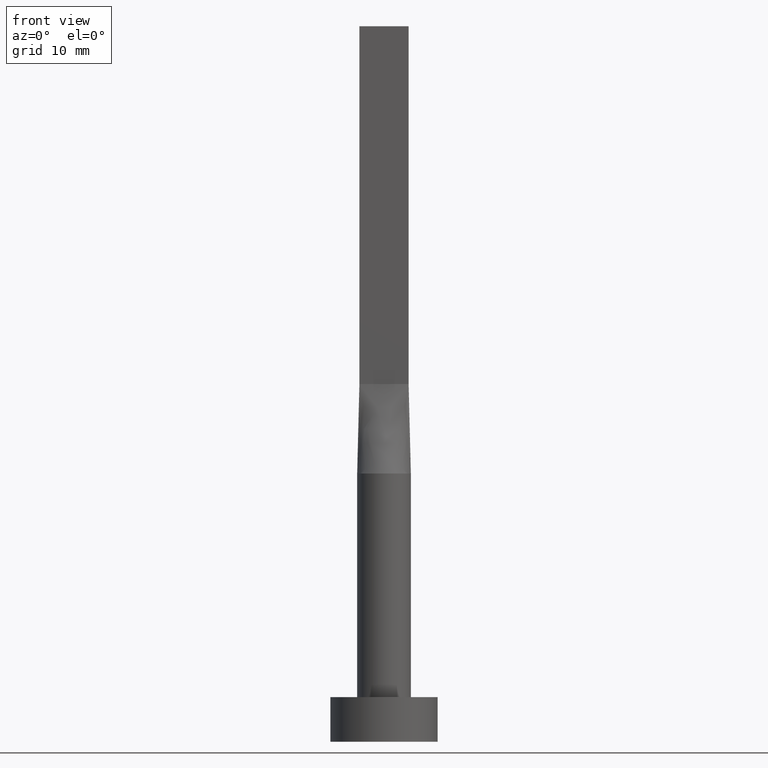
[diagram: clean part render]
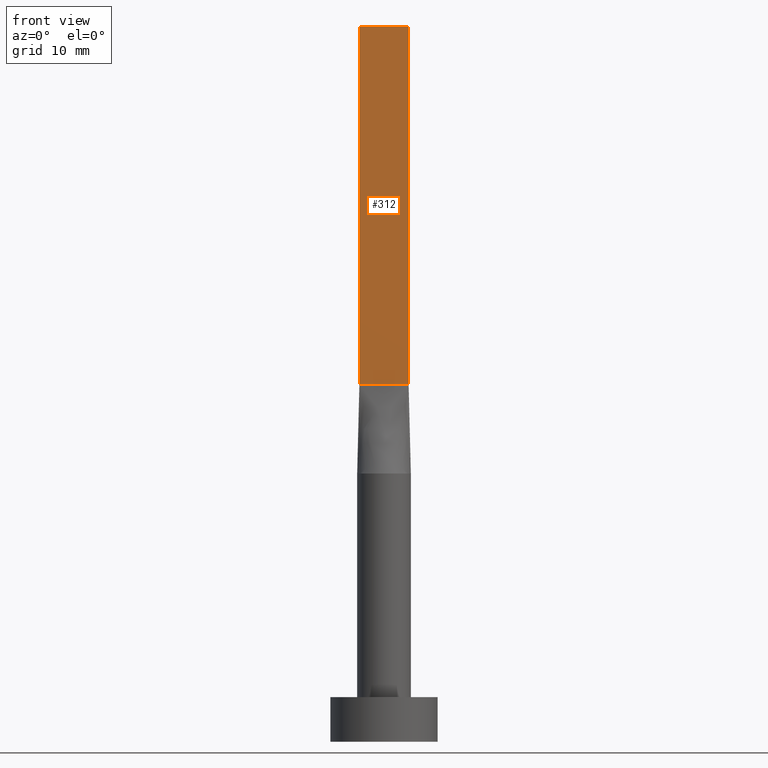
[diagram: same view with one face highlighted and labeled with its STEP entity id]
A machine part, front view. The second image highlights one B-rep face of the part: STEP entity #312.
In plain terms, the highlighted planar face has unit normal (0, 1, -0).
Its self-contained STEP definition (entity closure, byte-faithful):
#7 = FACE_OUTER_BOUND ( 'NONE', #514, .T. ) ;
#23 = LINE ( 'NONE', #381, #494 ) ;
#88 = CARTESIAN_POINT ( 'NONE',  ( -2.750000000000000000, -0.4999999999999994449, 80.00000000000000000 ) ) ;
#93 = ORIENTED_EDGE ( 'NONE', *, *, #144, .T. ) ;
#135 = ORIENTED_EDGE ( 'NONE', *, *, #284, .T. ) ;
#144 = EDGE_CURVE ( 'NONE', #578, #531, #23, .T. ) ;
#152 = CARTESIAN_POINT ( 'NONE',  ( -2.750000000000000000, -0.4999999999999994449, 80.00000000000000000 ) ) ;
#160 = CARTESIAN_POINT ( 'NONE',  ( -2.750000000000000000, -0.4999999999999994449, 40.00000000000000000 ) ) ;
#191 = DIRECTION ( 'NONE',  ( -0.000000000000000000, -0.000000000000000000, -1.000000000000000000 ) ) ;
#195 = VECTOR ( 'NONE', #191, 1000.000000000000000 ) ;
#211 = LINE ( 'NONE', #88, #353 ) ;
#213 = DIRECTION ( 'NONE',  ( 1.000000000000000000, -5.913830031739115543E-17, 0.000000000000000000 ) ) ;
#218 = CARTESIAN_POINT ( 'NONE',  ( 2.750000000000000000, -0.4999999999999997780, 40.00000000000000000 ) ) ;
#272 = PLANE ( 'NONE',  #302 ) ;
#284 = EDGE_CURVE ( 'NONE', #481, #578, #367, .T. ) ;
#290 = DIRECTION ( 'NONE',  ( 1.000000000000000000, -5.913830031739115543E-17, 0.000000000000000000 ) ) ;
#302 = AXIS2_PLACEMENT_3D ( 'NONE', #331, #549, #502 ) ;
#312 = ADVANCED_FACE ( 'NONE', ( #7 ), #272, .F. ) ;
#331 = CARTESIAN_POINT ( 'NONE',  ( -2.750000000000000000, -0.4999999999999994449, 80.00000000000000000 ) ) ;
#353 = VECTOR ( 'NONE', #213, 1000.000000000000000 ) ;
#360 = CARTESIAN_POINT ( 'NONE',  ( 2.750000000000000000, -0.4999999999999997780, 80.00000000000000000 ) ) ;
#367 = LINE ( 'NONE', #152, #195 ) ;
#372 = CARTESIAN_POINT ( 'NONE',  ( -2.750000000000000000, -0.4999999999999994449, 80.00000000000000000 ) ) ;
#381 = CARTESIAN_POINT ( 'NONE',  ( -2.750000000000000000, -0.4999999999999994449, 40.00000000000000000 ) ) ;
#391 = ORIENTED_EDGE ( 'NONE', *, *, #430, .F. ) ;
#394 = VECTOR ( 'NONE', #526, 1000.000000000000000 ) ;
#395 = ORIENTED_EDGE ( 'NONE', *, *, #555, .F. ) ;
#430 = EDGE_CURVE ( 'NONE', #481, #550, #211, .T. ) ;
#438 = CARTESIAN_POINT ( 'NONE',  ( 2.750000000000000000, -0.4999999999999997780, 80.00000000000000000 ) ) ;
#481 = VERTEX_POINT ( 'NONE', #372 ) ;
#494 = VECTOR ( 'NONE', #290, 1000.000000000000000 ) ;
#502 = DIRECTION ( 'NONE',  ( -1.000000000000000000, 5.913830031739115543E-17, 0.000000000000000000 ) ) ;
#514 = EDGE_LOOP ( 'NONE', ( #93, #395, #391, #135 ) ) ;
#526 = DIRECTION ( 'NONE',  ( -0.000000000000000000, -0.000000000000000000, -1.000000000000000000 ) ) ;
#531 = VERTEX_POINT ( 'NONE', #218 ) ;
#549 = DIRECTION ( 'NONE',  ( 5.913830031739115543E-17, 1.000000000000000000, -0.000000000000000000 ) ) ;
#550 = VERTEX_POINT ( 'NONE', #438 ) ;
#555 = EDGE_CURVE ( 'NONE', #550, #531, #570, .T. ) ;
#570 = LINE ( 'NONE', #360, #394 ) ;
#578 = VERTEX_POINT ( 'NONE', #160 ) ;